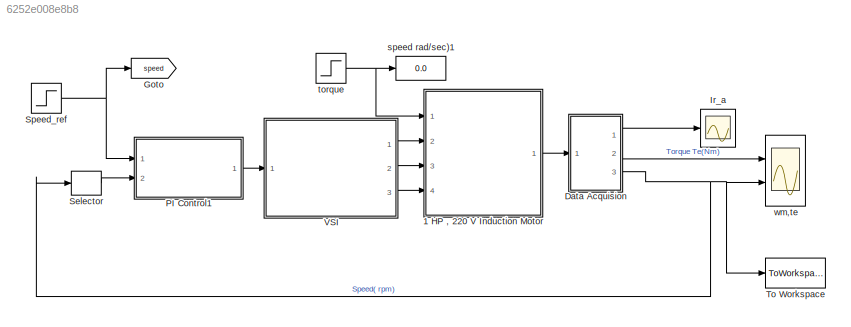
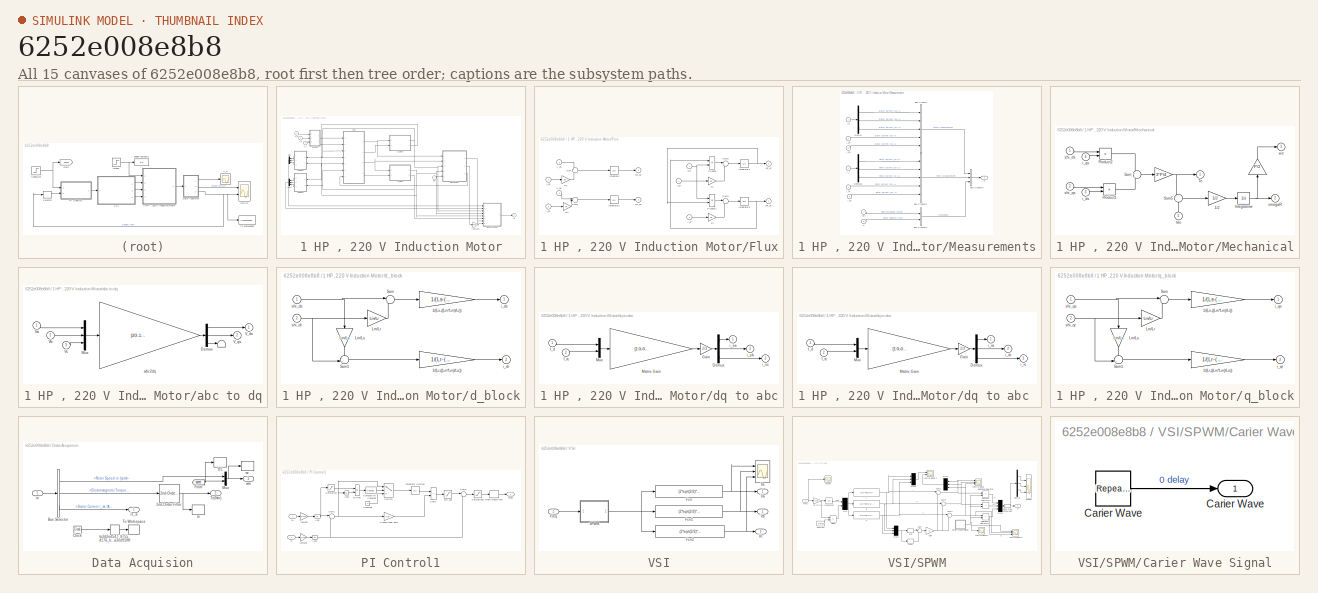
[diagram: thumbnail index - all 15 canvases of the model, root first then tree order]
MODEL mdl_6252e008e8b8
KIND model
CONFIG AbsTol = auto
CONFIG EnableMultiTasking = on
CONFIG FixedStep = auto
CONFIG InitFcn = ts=100e-6;
CONFIG MaxStep = auto
CONFIG MinStep = auto
CONFIG RelTol = 1e-3
CONFIG SampleTimeConstraint = Unconstrained
CONFIG SolverName = ode23tb
CONFIG StartFcn = close all
CONFIG StartTime = 0.0
CONFIG StopTime = 4
BLOCK [SubSystem] 1 HP , 220 V Induction Motor
  Ports = [4, 1]
  RequestExecContextInheritance = off
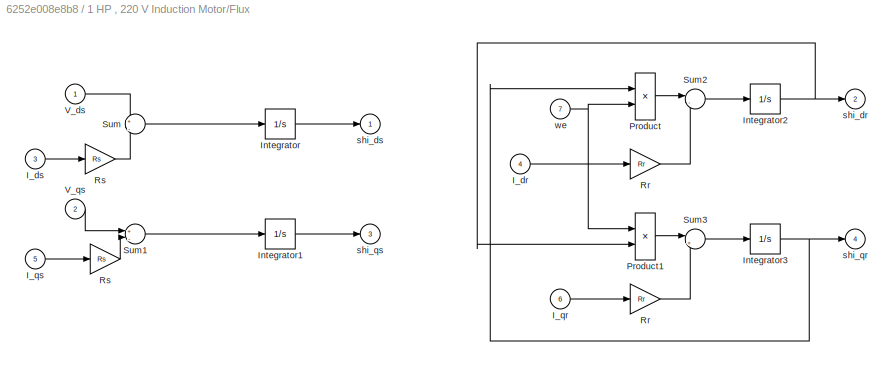
BLOCK [SubSystem] 1 HP , 220 V Induction Motor/Flux
  Ports = [7, 4]
  RequestExecContextInheritance = off
BLOCK [Inport] 1 HP , 220 V Induction Motor/Flux/I_dr
  Port = 4
BLOCK [Inport] 1 HP , 220 V Induction Motor/Flux/I_ds
  Port = 3
BLOCK [Inport] 1 HP , 220 V Induction Motor/Flux/I_qr
  Port = 6
BLOCK [Inport] 1 HP , 220 V Induction Motor/Flux/I_qs
  Port = 5
BLOCK [Integrator] 1 HP , 220 V Induction Motor/Flux/Integrator
  Ports = [1, 1]
BLOCK [Integrator] 1 HP , 220 V Induction Motor/Flux/Integrator1
  Ports = [1, 1]
BLOCK [Integrator] 1 HP , 220 V Induction Motor/Flux/Integrator2
  Ports = [1, 1]
BLOCK [Integrator] 1 HP , 220 V Induction Motor/Flux/Integrator3
  Ports = [1, 1]
BLOCK [Product] 1 HP , 220 V Induction Motor/Flux/Product
  Ports = [2, 1]
BLOCK [Product] 1 HP , 220 V Induction Motor/Flux/Product1
  Ports = [2, 1]
BLOCK [Gain] 1 HP , 220 V Induction Motor/Flux/Rr
  Gain = Rr
BLOCK [Gain] 1 HP , 220 V Induction Motor/Flux/Rr 
  Gain = Rr
BLOCK [Gain] 1 HP , 220 V Induction Motor/Flux/Rs
  Gain = Rs
BLOCK [Gain] 1 HP , 220 V Induction Motor/Flux/Rs 
  Gain = Rs
BLOCK [Sum] 1 HP , 220 V Induction Motor/Flux/Sum
  Inputs = +|-
  Ports = [2, 1]
BLOCK [Sum] 1 HP , 220 V Induction Motor/Flux/Sum1
  Inputs = +|-
  Ports = [2, 1]
BLOCK [Sum] 1 HP , 220 V Induction Motor/Flux/Sum2
  Inputs = |--
  Ports = [2, 1]
BLOCK [Sum] 1 HP , 220 V Induction Motor/Flux/Sum3
  Inputs = |+-
  Ports = [2, 1]
BLOCK [Inport] 1 HP , 220 V Induction Motor/Flux/V_ds
BLOCK [Inport] 1 HP , 220 V Induction Motor/Flux/V_qs
  Port = 2
BLOCK [Outport] 1 HP , 220 V Induction Motor/Flux/shi_dr 
  Port = 2
BLOCK [Outport] 1 HP , 220 V Induction Motor/Flux/shi_ds
BLOCK [Outport] 1 HP , 220 V Induction Motor/Flux/shi_qr 
  Port = 4
BLOCK [Outport] 1 HP , 220 V Induction Motor/Flux/shi_qs
  Port = 3
BLOCK [Inport] 1 HP , 220 V Induction Motor/Flux/we
  Port = 7
BLOCK [SubSystem] 1 HP , 220 V Induction Motor/Measurements
  Ports = [8, 1]
  RequestExecContextInheritance = off
BLOCK [BusCreator] 1 HP , 220 V Induction Motor/Measurements/Bus Creator
  DisplayOption = bar
  InheritFromInputs = on
  Inputs = 5
  Ports = [5, 1]
BLOCK [BusCreator] 1 HP , 220 V Induction Motor/Measurements/Bus Creator1
  DisplayOption = bar
  InheritFromInputs = on
  Inputs = 5
  Ports = [5, 1]
BLOCK [BusCreator] 1 HP , 220 V Induction Motor/Measurements/Bus Creator2
  DisplayOption = bar
  InheritFromInputs = on
  Inputs = 2
  Ports = [2, 1]
BLOCK [BusCreator] 1 HP , 220 V Induction Motor/Measurements/Bus Creator3
  DisplayOption = bar
  InheritFromInputs = on
  Inputs = 3
  Ports = [3, 1]
BLOCK [Demux] 1 HP , 220 V Induction Motor/Measurements/Demux
  Outputs = 3
  Ports = [1, 3]
BLOCK [Demux] 1 HP , 220 V Induction Motor/Measurements/Demux1
  Outputs = 3
  Ports = [1, 3]
BLOCK [Inport] 1 HP , 220 V Induction Motor/Measurements/I_dr
  Port = 4
BLOCK [Inport] 1 HP , 220 V Induction Motor/Measurements/I_ds
  Port = 3
BLOCK [Inport] 1 HP , 220 V Induction Motor/Measurements/I_qr
  Port = 6
BLOCK [Inport] 1 HP , 220 V Induction Motor/Measurements/I_qs
  Port = 5
BLOCK [Inport] 1 HP , 220 V Induction Motor/Measurements/I_r
  Port = 2
BLOCK [Inport] 1 HP , 220 V Induction Motor/Measurements/I_s
BLOCK [Inport] 1 HP , 220 V Induction Motor/Measurements/N
  Port = 8
BLOCK [Inport] 1 HP , 220 V Induction Motor/Measurements/Te
  Port = 7
BLOCK [Outport] 1 HP , 220 V Induction Motor/Measurements/m
BLOCK [SubSystem] 1 HP , 220 V Induction Motor/Mechanical
  Ports = [5, 3]
  RequestExecContextInheritance = off
BLOCK [Gain] 1 HP , 220 V Induction Motor/Mechanical/ 
  Gain = P/2
  NameLocation = left
  OutDataTypeStr = Inherit: Same as input
  ParamDataTypeStr = Inherit: Same as input
  SaturateOnIntegerOverflow = on
BLOCK [Gain] 1 HP , 220 V Induction Motor/Mechanical/  
  Gain = 3*P/4
  OutDataTypeStr = Inherit: Same as input
  ParamDataTypeStr = Inherit: Same as input
  SaturateOnIntegerOverflow = on
BLOCK [Gain] 1 HP , 220 V Induction Motor/Mechanical/1//J
  Gain = 1/J
  OutDataTypeStr = Inherit: Same as input
  ParamDataTypeStr = Inherit: Same as input
  SaturateOnIntegerOverflow = on
BLOCK [Integrator] 1 HP , 220 V Induction Motor/Mechanical/Integratorw
  Ports = [1, 1]
BLOCK [Product] 1 HP , 220 V Induction Motor/Mechanical/Product1
  Ports = [2, 1]
BLOCK [Product] 1 HP , 220 V Induction Motor/Mechanical/Product2
  Ports = [2, 1]
BLOCK [Sum] 1 HP , 220 V Induction Motor/Mechanical/Sum
  Inputs = +|-
  Ports = [2, 1]
BLOCK [Sum] 1 HP , 220 V Induction Motor/Mechanical/Sum5
  InputSameDT = on
  Inputs = +-
  OutDataTypeStr = Inherit: Same as first input
  Ports = [2, 1]
  SaturateOnIntegerOverflow = on
BLOCK [Outport] 1 HP , 220 V Induction Motor/Mechanical/Te
BLOCK [Inport] 1 HP , 220 V Induction Motor/Mechanical/i_ds
  Port = 3
BLOCK [Inport] 1 HP , 220 V Induction Motor/Mechanical/i_qs
  Port = 4
BLOCK [Outport] 1 HP , 220 V Induction Motor/Mechanical/omegaR
  Port = 2
BLOCK [Inport] 1 HP , 220 V Induction Motor/Mechanical/shi_ds
BLOCK [Inport] 1 HP , 220 V Induction Motor/Mechanical/shi_qs
  Port = 2
BLOCK [Inport] 1 HP , 220 V Induction Motor/Mechanical/tau
  NameLocation = left
  Port = 5
BLOCK [Outport] 1 HP , 220 V Induction Motor/Mechanical/we
  Port = 3
BLOCK [Mux] 1 HP , 220 V Induction Motor/Mux
  DisplayOption = bar
  Inputs = 3
  Ports = [3, 1]
BLOCK [Mux] 1 HP , 220 V Induction Motor/Mux1
  DisplayOption = bar
  Inputs = 3
  Ports = [3, 1]
BLOCK [Inport] 1 HP , 220 V Induction Motor/V_a
  NameLocation = top
  Port = 2
BLOCK [Inport] 1 HP , 220 V Induction Motor/V_b
  Port = 3
BLOCK [Inport] 1 HP , 220 V Induction Motor/V_c
  Port = 4
BLOCK [SubSystem] 1 HP , 220 V Induction Motor/abc to dq
  Ports = [3, 2]
  RequestExecContextInheritance = off
BLOCK [Terminator] 1 HP , 220 V Induction Motor/abc to dq/            
BLOCK [Demux] 1 HP , 220 V Induction Motor/abc to dq/Demux
  DisplayOption = none
  Outputs = 3
  Ports = [1, 3]
BLOCK [Mux] 1 HP , 220 V Induction Motor/abc to dq/Mux
  DisplayOption = bar
  Inputs = 3
  Ports = [3, 1]
BLOCK [Outport] 1 HP , 220 V Induction Motor/abc to dq/V_ds
BLOCK [Outport] 1 HP , 220 V Induction Motor/abc to dq/V_qs
  Port = 2
BLOCK [Inport] 1 HP , 220 V Induction Motor/abc to dq/Va
BLOCK [Inport] 1 HP , 220 V Induction Motor/abc to dq/Vb
  Port = 2
BLOCK [Inport] 1 HP , 220 V Induction Motor/abc to dq/Vc
  Port = 3
BLOCK [Gain] 1 HP , 220 V Induction Motor/abc to dq/abc2dq
  Gain = [2/3 -1/3 -1/3; 0 sqrt(3)/3 -sqrt(3)/3; 1/3 1/3 1/3]
  Multiplication = Matrix(K*u)
  OutDataTypeStr = Inherit: Same as input
  ParamDataTypeStr = Inherit: Same as input
  SaturateOnIntegerOverflow = on
BLOCK [SubSystem] 1 HP , 220 V Induction Motor/d_block
  Ports = [2, 2]
  RequestExecContextInheritance = off
BLOCK [Gain] 1 HP , 220 V Induction Motor/d_block/1//(Lr-((Lm*Lm)//Ls))
  Gain = 1/(Lr-((Lm*Lm)/Ls))
  OutDataTypeStr = Inherit: Same as input
  ParamDataTypeStr = Inherit: Same as input
  SaturateOnIntegerOverflow = on
BLOCK [Gain] 1 HP , 220 V Induction Motor/d_block/1//(Ls-((Lm*Lm)//Lr))
  Gain = 1/(Ls-((Lm*Lm)/Lr))
  OutDataTypeStr = Inherit: Same as input
  ParamDataTypeStr = Inherit: Same as input
  SaturateOnIntegerOverflow = on
BLOCK [Gain] 1 HP , 220 V Induction Motor/d_block/Lm//Lr
  Gain = Lm/Lr
BLOCK [Gain] 1 HP , 220 V Induction Motor/d_block/Lm//Ls
  Gain = Lm/Ls
  NameLocation = left
BLOCK [Sum] 1 HP , 220 V Induction Motor/d_block/Sum
  Inputs = |+-
  Ports = [2, 1]
BLOCK [Sum] 1 HP , 220 V Induction Motor/d_block/Sum1
  Inputs = -+|
  Ports = [2, 1]
BLOCK [Outport] 1 HP , 220 V Induction Motor/d_block/i_dr
  Port = 2
BLOCK [Outport] 1 HP , 220 V Induction Motor/d_block/i_ds
BLOCK [Inport] 1 HP , 220 V Induction Motor/d_block/shi_dr
  Port = 2
BLOCK [Inport] 1 HP , 220 V Induction Motor/d_block/shi_ds
BLOCK [SubSystem] 1 HP , 220 V Induction Motor/dq to abc
  Ports = [2, 3]
  RequestExecContextInheritance = off
BLOCK [SubSystem] 1 HP , 220 V Induction Motor/dq to abc 
  Ports = [2, 3]
  RequestExecContextInheritance = off
BLOCK [Demux] 1 HP , 220 V Induction Motor/dq to abc /Demux
  DisplayOption = none
  Outputs = 3
  Ports = [1, 3]
BLOCK [Gain] 1 HP , 220 V Induction Motor/dq to abc /Gain
  Gain = 2/3
  OutDataTypeStr = Inherit: Same as input
  ParamDataTypeStr = Inherit: Same as input
  SaturateOnIntegerOverflow = on
BLOCK [Inport] 1 HP , 220 V Induction Motor/dq to abc /I_d
BLOCK [Inport] 1 HP , 220 V Induction Motor/dq to abc /I_q
  Port = 2
BLOCK [Gain] 1 HP , 220 V Induction Motor/dq to abc /Matrix Gain
  Gain = [1 0;-0.5 -sqrt(3)/2;-0.5 sqrt(3)/2]
  Multiplication = Matrix(K*u)
  OutDataTypeStr = Inherit: Same as input
  ParamDataTypeStr = Inherit: Same as input
  SaturateOnIntegerOverflow = on
BLOCK [Mux] 1 HP , 220 V Induction Motor/dq to abc /Mux
  DisplayOption = bar
  Inputs = 2
  Ports = [2, 1]
BLOCK [Outport] 1 HP , 220 V Induction Motor/dq to abc /i_ra
BLOCK [Outport] 1 HP , 220 V Induction Motor/dq to abc /i_rb
  Port = 2
BLOCK [Outport] 1 HP , 220 V Induction Motor/dq to abc /i_rc
  Port = 3
BLOCK [Demux] 1 HP , 220 V Induction Motor/dq to abc/Demux
  DisplayOption = none
  Outputs = 3
  Ports = [1, 3]
BLOCK [Gain] 1 HP , 220 V Induction Motor/dq to abc/Gain
  Gain = 2/3
  OutDataTypeStr = Inherit: Same as input
  ParamDataTypeStr = Inherit: Same as input
  SaturateOnIntegerOverflow = on
BLOCK [Inport] 1 HP , 220 V Induction Motor/dq to abc/I_d
BLOCK [Inport] 1 HP , 220 V Induction Motor/dq to abc/I_q
  Port = 2
BLOCK [Gain] 1 HP , 220 V Induction Motor/dq to abc/Matrix Gain
  Gain = [1 0;-0.5 -sqrt(3)/2;-0.5 sqrt(3)/2]
  Multiplication = Matrix(K*u)
  OutDataTypeStr = Inherit: Same as input
  ParamDataTypeStr = Inherit: Same as input
  SaturateOnIntegerOverflow = on
BLOCK [Mux] 1 HP , 220 V Induction Motor/dq to abc/Mux
  DisplayOption = bar
  Inputs = 2
  Ports = [2, 1]
BLOCK [Outport] 1 HP , 220 V Induction Motor/dq to abc/i_sa
BLOCK [Outport] 1 HP , 220 V Induction Motor/dq to abc/i_sb
  Port = 2
BLOCK [Outport] 1 HP , 220 V Induction Motor/dq to abc/i_sc
  Port = 3
BLOCK [Outport] 1 HP , 220 V Induction Motor/m
BLOCK [SubSystem] 1 HP , 220 V Induction Motor/q_block
  Ports = [2, 2]
  RequestExecContextInheritance = off
BLOCK [Gain] 1 HP , 220 V Induction Motor/q_block/1//(Lr-((Lm*Lm)//Ls))
  Gain = 1/(Lr-((Lm*Lm)/Ls))
  OutDataTypeStr = Inherit: Same as input
  ParamDataTypeStr = Inherit: Same as input
  SaturateOnIntegerOverflow = on
BLOCK [Gain] 1 HP , 220 V Induction Motor/q_block/1//(Ls-((Lm*Lm)//Lr))
  Gain = 1/(Ls-((Lm*Lm)/Lr))
  OutDataTypeStr = Inherit: Same as input
  ParamDataTypeStr = Inherit: Same as input
  SaturateOnIntegerOverflow = on
BLOCK [Gain] 1 HP , 220 V Induction Motor/q_block/Lm//Lr
  Gain = Lm/Lr
BLOCK [Gain] 1 HP , 220 V Induction Motor/q_block/Lm//Ls
  Gain = Lm/Ls
  NameLocation = right
BLOCK [Sum] 1 HP , 220 V Induction Motor/q_block/Sum
  Inputs = |+-
  Ports = [2, 1]
BLOCK [Sum] 1 HP , 220 V Induction Motor/q_block/Sum1
  Inputs = -+|
  Ports = [2, 1]
BLOCK [Outport] 1 HP , 220 V Induction Motor/q_block/i_qr
  Port = 2
BLOCK [Outport] 1 HP , 220 V Induction Motor/q_block/i_qs
BLOCK [Inport] 1 HP , 220 V Induction Motor/q_block/shi_qr
  Port = 2
BLOCK [Inport] 1 HP , 220 V Induction Motor/q_block/shi_qs
BLOCK [Gain] 1 HP , 220 V Induction Motor/rad2rpm
  Gain = 30/pi
BLOCK [Inport] 1 HP , 220 V Induction Motor/tau
BLOCK [SubSystem] Data Acquision
  Ports = [1, 3]
  RequestExecContextInheritance = off
BLOCK [Reference] Data Acquision/2nd-Order Filter  REF=powerlib_extras/Control 
Blocks/2nd-Order
Filter
  Ports = [1, 1]
  SourceBlock = powerlib_extras/Control \nBlocks/2nd-Order\nFilter
  SourceProductBaseCode = PS
  SourceType = 2nd-Order Filter
BLOCK [BusSelector] Data Acquision/Bus Selector
  OutputSignals = Mechanical.Rotor Speed in (rpm),Mechanical.Electromagnetic Torque (N*m),Stator Measurement.Stator Current i_sa (A)
  Ports = [1, 3]
BLOCK [Clock] Data Acquision/Clock
BLOCK [From] Data Acquision/From
  GotoTag = speed
  TagVisibility = global
BLOCK [Mux] Data Acquision/Mux
  DisplayOption = bar
  Inputs = 2
  Ports = [2, 1]
BLOCK [Outport] Data Acquision/Te(Nm)
  Port = 2
BLOCK [ToWorkspace] Data Acquision/To Workspace
  FixptAsFi = on
  MaxDataPoints = inf
  Ports = [1]
  SampleTime = ts
  VariableName = t
BLOCK [Outport] Data Acquision/is_a
BLOCK [Inport] Data Acquision/m
BLOCK [ToWorkspace] Data Acquision/te
  MaxDataPoints = inf
  Ports = [1]
  SampleTime = ts
  VariableName = Te_pi
BLOCK [ToWorkspace] Data Acquision/te1
  MaxDataPoints = inf
  Ports = [1]
  SampleTime = ts
  VariableName = ref_pi
BLOCK [FrameConversion] Data Acquision/tp2d2ed547_8755_4176_b2df_b47a3ed91f8f
  OutFrame = Sample-based
  Ports = [1, 1]
BLOCK [Outport] Data Acquision/wm
  Port = 3
BLOCK [ToWorkspace] Data Acquision/wr
  MaxDataPoints = inf
  Ports = [1]
  SampleTime = ts
  VariableName = N_pi
BLOCK [Goto] Goto
  GotoTag = speed
  TagVisibility = global
BLOCK [Scope] Ir_a
  Floating = off
  NumInputPorts = 1
  Ports = [1]
  ScopeSpecificationString = C++SS(StrPVP('Location','[154, 63, 762, 358]'),StrPVP('Open','off'),StrPVP('ZoomMode','xonly'),MxPVP('AxesTitles',54,'struct(''axes1'',''%<SignalLabel>'')'),StrPVP('ShowLegends','off'),StrPVP('TimeRange','2'),StrPVP('YMin','-3'),StrPVP('YMax','3'),StrPVP('DataFormat','StructureWithTime'),StrPVP('LimitDataPoints','off'),StrPVP('BlockParamSampleTime','ts'),StrPVP('Decimation','1'),StrPVP('BlockParam...<+20ch>
BLOCK [SubSystem] PI Control1
  Ports = [2, 1]
  RequestExecContextInheritance = off
BLOCK [Abs] PI Control1/Abs
BLOCK [Abs] PI Control1/Abs1
BLOCK [Abs] PI Control1/Abs2
  SaturateOnIntegerOverflow = off
BLOCK [Reference] PI Control1/Compare To Constant  REF=simulink/Logic and Bit
Operations/Compare
To Constant
  Ports = [1, 1]
  SourceBlock = simulink/Logic and Bit\nOperations/Compare\nTo Constant
  SourceProductBaseCode = SL
  SourceType = Compare To Constant
BLOCK [Constant] PI Control1/Constant
  Value = 0
BLOCK [Product] PI Control1/Divide
  Inputs = /*
  Ports = [2, 1]
BLOCK [Outport] PI Control1/Freq*
BLOCK [Integrator] PI Control1/Integrator Limited
  LimitOutput = on
  LowerSaturationLimit = -30
  Ports = [1, 1]
  UpperSaturationLimit = 30
BLOCK [Inport] PI Control1/N
  Port = 2
BLOCK [Inport] PI Control1/N*
BLOCK [Gain] PI Control1/Proportional gain
  Gain = 0.6
  OutDataTypeStr = Inherit: Same as input
  ParamDataTypeStr = Inherit: Same as input
  SaturateOnIntegerOverflow = on
BLOCK [RateTransition] PI Control1/Rate Transition3
  OutPortSampleTimeOpt = Inherit
BLOCK [Saturate] PI Control1/Saturation
  LowerLimit = 2
  UpperLimit = inf
BLOCK [Saturate] PI Control1/Saturation2
  LowerLimit = 0.02
  UpperLimit = 120
BLOCK [Sum] PI Control1/Sum1
  InputSameDT = on
  Inputs = |+-
  OutDataTypeStr = Inherit: Same as first input
  Ports = [2, 1]
  SaturateOnIntegerOverflow = on
BLOCK [Sum] PI Control1/Sum2
  IconShape = rectangular
  InputSameDT = on
  OutDataTypeStr = Inherit: Same as first input
  Ports = [2, 1]
  SaturateOnIntegerOverflow = on
BLOCK [Sum] PI Control1/Sum3
  InputSameDT = on
  Inputs = |++
  OutDataTypeStr = Inherit: Same as first input
  Ports = [2, 1]
  SaturateOnIntegerOverflow = on
BLOCK [Switch] PI Control1/Switch
  InputSameDT = off
  SaturateOnIntegerOverflow = off
  Threshold = 0.5
BLOCK [Saturate] PI Control1/ctrl_sat
  LowerLimit = -30
  UpperLimit = 30
BLOCK [Gain] PI Control1/rpm2hz
  Gain = 4/120
  OutDataTypeStr = Inherit: Same as input
  ParamDataTypeStr = Inherit: Same as input
  SaturateOnIntegerOverflow = on
BLOCK [Gain] PI Control1/rpm2hz  
  Gain = 4/120
  OutDataTypeStr = Inherit: Same as input
  ParamDataTypeStr = Inherit: Same as input
  SaturateOnIntegerOverflow = on
BLOCK [Selector] Selector
  IndexOptions = Index vector (dialog)
  Indices = [1]
  InputPortWidth = 2
  OutputSizes = 1
  Ports = [1, 1]
BLOCK [Step] Speed_ref
  After = 1400
  Before = 500
  SampleTime = 0
  Time = 2
BLOCK [ToWorkspace] To Workspace
  MaxDataPoints = inf
  Ports = [1]
  SampleTime = -1
  SaveFormat = Timeseries
  VariableName = Speed_PI
BLOCK [SubSystem] VSI
  Ports = [1, 3]
  RequestExecContextInheritance = off
BLOCK [Fcn] VSI/Fcn
  Expr = (2*sqrt(2/3)*Vdc/3)*(2*u(1)-u(2)-u(3))
BLOCK [Fcn] VSI/Fcn1
  Expr = (2*sqrt(2/3)*Vdc/3)*(2*u(2)-u(3)-u(1))
BLOCK [Fcn] VSI/Fcn2
  Expr = (2*sqrt(2/3)*Vdc/3)*(2*u(3)-u(2)-u(1))
BLOCK [Inport] VSI/Freq
  NameLocation = top
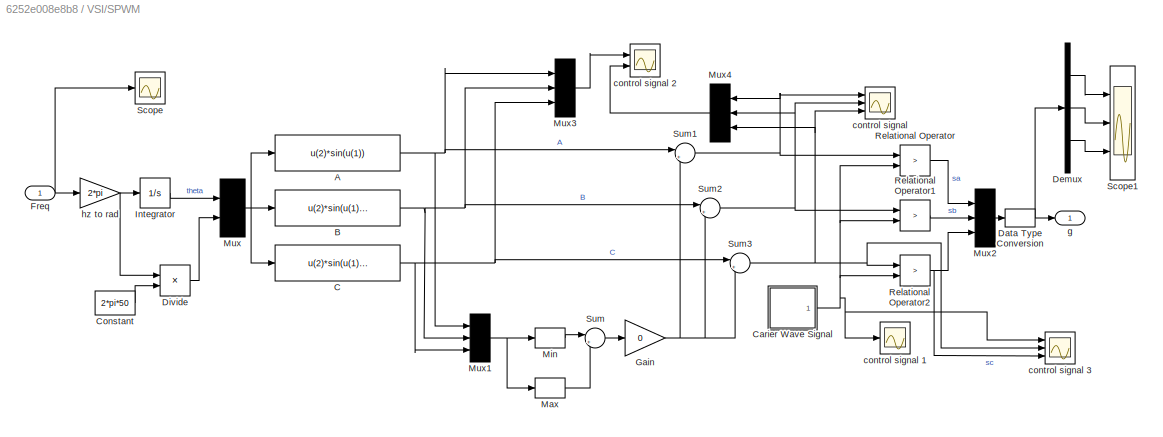
BLOCK [SubSystem] VSI/SPWM
  Ports = [1, 1]
  RequestExecContextInheritance = off
BLOCK [Fcn] VSI/SPWM/A
  Expr = u(2)*sin(u(1))
BLOCK [Fcn] VSI/SPWM/B
  Expr = u(2)*sin(u(1)-2*pi/3)
BLOCK [Fcn] VSI/SPWM/C
  Expr = u(2)*sin(u(1)+2*pi/3)
BLOCK [SubSystem] VSI/SPWM/Carier Wave Signal
  Ports = [0, 1]
  RequestExecContextInheritance = off
BLOCK [Reference] VSI/SPWM/Carier Wave Signal/Carier Wave  REF=simulink/Sources/Repeating
Sequence
  Ports = [0, 1]
  SourceBlock = simulink/Sources/Repeating\nSequence
  SourceProductBaseCode = SL
  SourceType = Repeating table
BLOCK [Outport] VSI/SPWM/Carier Wave Signal/Carier Wave 
BLOCK [Constant] VSI/SPWM/Constant
  Value = 2*pi*50
BLOCK [DataTypeConversion] VSI/SPWM/Data Type Conversion
  RndMeth = Floor
  SaturateOnIntegerOverflow = off
BLOCK [Demux] VSI/SPWM/Demux
  Outputs = 3
  Ports = [1, 3]
BLOCK [Product] VSI/SPWM/Divide
  Inputs = */
  Ports = [2, 1]
BLOCK [Inport] VSI/SPWM/Freq
BLOCK [Gain] VSI/SPWM/Gain
  Gain = 0
BLOCK [Integrator] VSI/SPWM/Integrator
  Ports = [1, 1]
BLOCK [MinMax] VSI/SPWM/Max
  Function = max
  Ports = [1, 1]
BLOCK [MinMax] VSI/SPWM/Min
  Ports = [1, 1]
BLOCK [Mux] VSI/SPWM/Mux
  DisplayOption = signals
  Inputs = 2
  Ports = [2, 1]
BLOCK [Mux] VSI/SPWM/Mux1
  DisplayOption = signals
  Inputs = 3
  Ports = [3, 1]
BLOCK [Mux] VSI/SPWM/Mux2
  DisplayOption = signals
  Inputs = 3
  Ports = [3, 1]
BLOCK [Mux] VSI/SPWM/Mux3
  DisplayOption = signals
  Inputs = 3
  Ports = [3, 1]
BLOCK [Mux] VSI/SPWM/Mux4
  DisplayOption = signals
  Inputs = 3
  Ports = [3, 1]
BLOCK [RelationalOperator] VSI/SPWM/Relational Operator
  InputSameDT = off
  Operator = >
  OutDataTypeStr = boolean
  Ports = [2, 1]
BLOCK [RelationalOperator] VSI/SPWM/Relational Operator1
  InputSameDT = off
  Operator = >
  OutDataTypeStr = boolean
  Ports = [2, 1]
BLOCK [RelationalOperator] VSI/SPWM/Relational Operator2
  InputSameDT = off
  Operator = >
  OutDataTypeStr = boolean
  Ports = [2, 1]
BLOCK [Scope] VSI/SPWM/Scope
  Floating = off
  NumInputPorts = 1
  Ports = [1]
  ScopeSpecificationString = C++SS(StrPVP('Location','[5, 49, 1371, 737]'),StrPVP('Open','off'),StrPVP('ZoomMode','yonly'),MxPVP('AxesTitles',54,'struct(''axes1'',''%<SignalLabel>'')'),StrPVP('ShowLegends','off'),StrPVP('TimeRange','3'),StrPVP('YMin','30'),StrPVP('YMax','50'),StrPVP('SaveName','ScopeData2'),StrPVP('DataFormat','StructureWithTime'),StrPVP('LimitDataPoints','off'),StrPVP('BlockParamSampleTime','0'),StrPVP('Deci...<+51ch>
BLOCK [Scope] VSI/SPWM/Scope1
  Floating = off
  NumInputPorts = 3
  Ports = [3]
  ScopeSpecificationString = C++SS(StrPVP('Location','[5, 49, 1371, 737]'),StrPVP('Open','off'),StrPVP('ZoomMode','xonly'),MxPVP('AxesTitles',54,'struct(''axes1'',''%<SignalLabel>'',''axes2'',''%<SignalLabel>'',''axes3'',''%<SignalLabel>'')'),MxPVP('ScopeGraphics',57,'struct(''FigureColor'',''[0.5 0.5 0.5]'',''AxesColor'',''[0 0 0]'',''AxesTickColor'',''[1 1 1]'',''LineColors'',''[1 1 0;1 0 1;0 1 1;1 0 0;0 1 0;0 0 1]'',''Line...<+429ch>
BLOCK [Sum] VSI/SPWM/Sum
  Inputs = |++
  Ports = [2, 1]
BLOCK [Sum] VSI/SPWM/Sum1
  Inputs = |++
  Ports = [2, 1]
BLOCK [Sum] VSI/SPWM/Sum2
  Inputs = |++
  Ports = [2, 1]
BLOCK [Sum] VSI/SPWM/Sum3
  Inputs = |++
  Ports = [2, 1]
BLOCK [Scope] VSI/SPWM/control signal 
  Floating = off
  NumInputPorts = 3
  Ports = [3]
  ScopeSpecificationString = C++SS(StrPVP('Location','[5, 49, 1371, 737]'),StrPVP('Open','off'),MxPVP('AxesTitles',54,'struct(''axes1'',''%<SignalLabel>'',''axes2'',''%<SignalLabel>'',''axes3'',''%<SignalLabel>'')'),StrPVP('ShowLegends','off'),StrPVP('TimeRange','0.5'),StrPVP('YMin','-1.5~-1.5~-1.5'),StrPVP('YMax','1.5~1.5~1.5'),StrPVP('DataFormat','StructureWithTime'),StrPVP('LimitDataPoints','off'),StrPVP('BlockParamSampleT...<+73ch>
BLOCK [Scope] VSI/SPWM/control signal 1
  Floating = off
  NumInputPorts = 1
  Ports = [1]
  ScopeSpecificationString = C++SS(StrPVP('Location','[5, 49, 1371, 737]'),StrPVP('Open','off'),StrPVP('ZoomMode','xonly'),MxPVP('AxesTitles',54,'struct(''axes1'',''%<SignalLabel>'')'),StrPVP('ShowLegends','off'),StrPVP('TimeRange','0.0117840461100045'),StrPVP('YMin','-1'),StrPVP('YMax','1'),StrPVP('SaveName','ScopeData1'),StrPVP('DataFormat','StructureWithTime'),StrPVP('LimitDataPoints','off'),StrPVP('BlockParamSampleTime','...<+68ch>
BLOCK [Scope] VSI/SPWM/control signal 2
  Floating = off
  NumInputPorts = 2
  Ports = [2]
  ScopeSpecificationString = C++SS(StrPVP('Location','[5, 49, 1371, 737]'),StrPVP('Open','off'),StrPVP('ZoomMode','xonly'),MxPVP('AxesTitles',54,'struct(''axes1'',''%<SignalLabel>'',''axes2'',''%<SignalLabel>'')'),StrPVP('ShowLegends','off'),StrPVP('TimeRange','4'),StrPVP('YMin','-1.5~-1.5'),StrPVP('YMax','1.5~1.5'),StrPVP('SaveName','ScopeData6'),StrPVP('DataFormat','StructureWithTime'),StrPVP('LimitDataPoints','off'),StrPVP...<+92ch>
BLOCK [Scope] VSI/SPWM/control signal 3
  Floating = off
  NumInputPorts = 3
  Ports = [3]
  ScopeSpecificationString = C++SS(StrPVP('Location','[5, 49, 1371, 737]'),StrPVP('Open','off'),StrPVP('ZoomMode','xonly'),MxPVP('AxesTitles',54,'struct(''axes1'',''%<SignalLabel>'',''axes2'',''%<SignalLabel>'',''axes3'',''%<SignalLabel>'')'),MxPVP('ScopeGraphics',57,'struct(''FigureColor'',''[0.5 0.5 0.5]'',''AxesColor'',''[0 0 0]'',''AxesTickColor'',''[1 1 1]'',''LineColors'',''[1 1 0;1 0 1;0 1 1;1 0 0;0 1 0;0 0 1]'',''Line...<+446ch>
BLOCK [Outport] VSI/SPWM/g
BLOCK [Gain] VSI/SPWM/hz to rad
  Gain = 2*pi
BLOCK [Outport] VSI/Va
BLOCK [Outport] VSI/Vb
  Port = 2
BLOCK [Outport] VSI/Vc
  Port = 3
BLOCK [Scope] VSI/Vs
  Floating = off
  NameLocation = top
  NumInputPorts = 3
  Ports = [3]
  ScopeSpecificationString = C++SS(StrPVP('Location','[5, 49, 1371, 737]'),StrPVP('Open','off'),StrPVP('ZoomMode','xonly'),MxPVP('AxesTitles',54,'struct(''axes1'',''%<SignalLabel>'',''axes2'',''%<SignalLabel>'',''axes3'',''%<SignalLabel>'')'),StrPVP('ShowLegends','off'),StrPVP('TimeRange','0.1701392689898436'),StrPVP('YMin','-500~-500~-500'),StrPVP('YMax','500~500~500'),StrPVP('SaveToWorkspace','on'),StrPVP('SaveName','voltag...<+175ch>
BLOCK [Display] speed rad//sec)1
  Decimation = 1
  NameLocation = top
  Ports = [1]
BLOCK [Step] torque
  SampleTime = 0
  Time = 2
BLOCK [Scope] wm,te
  Floating = off
  NumInputPorts = 2
  Ports = [2]
  ScopeSpecificationString = C++SS(StrPVP('Location','[774, 60, 1361, 710]'),StrPVP('Open','off'),MxPVP('AxesTitles',54,'struct(''axes1'',''%<SignalLabel>'',''axes2'',''%<SignalLabel>'')'),MxPVP('ScopeGraphics',57,'struct(''FigureColor'',''[0.5 0.5 0.5]'',''AxesColor'',''[0 0 0]'',''AxesTickColor'',''[1 1 1]'',''LineColors'',''[1 1 0;1 0 1;0 1 1;1 0 0;0 1 0;0 0 1]'',''LineStyles'',''-|-|-|-|-|-'',''LineWidths'',''[0.5 0.5 0.5...<+376ch>
LINE 1 HP , 220 V Induction Motor/Flux/I_dr:1 -> 1 HP , 220 V Induction Motor/Flux/Rr:1
LINE 1 HP , 220 V Induction Motor/Flux/I_ds:1 -> 1 HP , 220 V Induction Motor/Flux/Rs:1
LINE 1 HP , 220 V Induction Motor/Flux/I_qr:1 -> 1 HP , 220 V Induction Motor/Flux/Rr :1
LINE 1 HP , 220 V Induction Motor/Flux/I_qs:1 -> 1 HP , 220 V Induction Motor/Flux/Rs :1
LINE 1 HP , 220 V Induction Motor/Flux/Integrator1:1 -> 1 HP , 220 V Induction Motor/Flux/shi_qs:1
NET 1 HP , 220 V Induction Motor/Flux/Integrator2:1 -> 1 HP , 220 V Induction Motor/Flux/Product1:2, 1 HP , 220 V Induction Motor/Flux/shi_dr :1
NET 1 HP , 220 V Induction Motor/Flux/Integrator3:1 -> 1 HP , 220 V Induction Motor/Flux/Product:1, 1 HP , 220 V Induction Motor/Flux/shi_qr :1
LINE 1 HP , 220 V Induction Motor/Flux/Integrator:1 -> 1 HP , 220 V Induction Motor/Flux/shi_ds:1
LINE 1 HP , 220 V Induction Motor/Flux/Product1:1 -> 1 HP , 220 V Induction Motor/Flux/Sum3:1
LINE 1 HP , 220 V Induction Motor/Flux/Product:1 -> 1 HP , 220 V Induction Motor/Flux/Sum2:1
LINE 1 HP , 220 V Induction Motor/Flux/Rr :1 -> 1 HP , 220 V Induction Motor/Flux/Sum3:2
LINE 1 HP , 220 V Induction Motor/Flux/Rr:1 -> 1 HP , 220 V Induction Motor/Flux/Sum2:2
LINE 1 HP , 220 V Induction Motor/Flux/Rs :1 -> 1 HP , 220 V Induction Motor/Flux/Sum1:2
LINE 1 HP , 220 V Induction Motor/Flux/Rs:1 -> 1 HP , 220 V Induction Motor/Flux/Sum:2
LINE 1 HP , 220 V Induction Motor/Flux/Sum1:1 -> 1 HP , 220 V Induction Motor/Flux/Integrator1:1
LINE 1 HP , 220 V Induction Motor/Flux/Sum2:1 -> 1 HP , 220 V Induction Motor/Flux/Integrator2:1
LINE 1 HP , 220 V Induction Motor/Flux/Sum3:1 -> 1 HP , 220 V Induction Motor/Flux/Integrator3:1
LINE 1 HP , 220 V Induction Motor/Flux/Sum:1 -> 1 HP , 220 V Induction Motor/Flux/Integrator:1
LINE 1 HP , 220 V Induction Motor/Flux/V_ds:1 -> 1 HP , 220 V Induction Motor/Flux/Sum:1
LINE 1 HP , 220 V Induction Motor/Flux/V_qs:1 -> 1 HP , 220 V Induction Motor/Flux/Sum1:1
NET 1 HP , 220 V Induction Motor/Flux/we:1 -> 1 HP , 220 V Induction Motor/Flux/Product1:1, 1 HP , 220 V Induction Motor/Flux/Product:2
NET 1 HP , 220 V Induction Motor/Flux:1 -> 1 HP , 220 V Induction Motor/Mechanical:1, 1 HP , 220 V Induction Motor/d_block:1
LINE 1 HP , 220 V Induction Motor/Flux:2 -> 1 HP , 220 V Induction Motor/d_block:2
NET 1 HP , 220 V Induction Motor/Flux:3 -> 1 HP , 220 V Induction Motor/Mechanical:2, 1 HP , 220 V Induction Motor/q_block:1
LINE 1 HP , 220 V Induction Motor/Flux:4 -> 1 HP , 220 V Induction Motor/q_block:2
LINE 1 HP , 220 V Induction Motor/Measurements/Bus Creator1:1 -> 1 HP , 220 V Induction Motor/Measurements/Bus Creator3:2
LINE 1 HP , 220 V Induction Motor/Measurements/Bus Creator2:1 -> 1 HP , 220 V Induction Motor/Measurements/Bus Creator3:3
LINE 1 HP , 220 V Induction Motor/Measurements/Bus Creator3:1 -> 1 HP , 220 V Induction Motor/Measurements/m:1
LINE 1 HP , 220 V Induction Motor/Measurements/Bus Creator:1 -> 1 HP , 220 V Induction Motor/Measurements/Bus Creator3:1
LINE 1 HP , 220 V Induction Motor/Measurements/Demux1:1 -> 1 HP , 220 V Induction Motor/Measurements/Bus Creator1:1
LINE 1 HP , 220 V Induction Motor/Measurements/Demux1:2 -> 1 HP , 220 V Induction Motor/Measurements/Bus Creator1:2
LINE 1 HP , 220 V Induction Motor/Measurements/Demux1:3 -> 1 HP , 220 V Induction Motor/Measurements/Bus Creator1:3
LINE 1 HP , 220 V Induction Motor/Measurements/Demux:1 -> 1 HP , 220 V Induction Motor/Measurements/Bus Creator:1
LINE 1 HP , 220 V Induction Motor/Measurements/Demux:2 -> 1 HP , 220 V Induction Motor/Measurements/Bus Creator:2
LINE 1 HP , 220 V Induction Motor/Measurements/Demux:3 -> 1 HP , 220 V Induction Motor/Measurements/Bus Creator:3
LINE 1 HP , 220 V Induction Motor/Measurements/I_dr:1 -> 1 HP , 220 V Induction Motor/Measurements/Bus Creator1:4
LINE 1 HP , 220 V Induction Motor/Measurements/I_ds:1 -> 1 HP , 220 V Induction Motor/Measurements/Bus Creator:4
LINE 1 HP , 220 V Induction Motor/Measurements/I_qr:1 -> 1 HP , 220 V Induction Motor/Measurements/Bus Creator1:5
LINE 1 HP , 220 V Induction Motor/Measurements/I_qs:1 -> 1 HP , 220 V Induction Motor/Measurements/Bus Creator:5
LINE 1 HP , 220 V Induction Motor/Measurements/I_r:1 -> 1 HP , 220 V Induction Motor/Measurements/Demux1:1
LINE 1 HP , 220 V Induction Motor/Measurements/I_s:1 -> 1 HP , 220 V Induction Motor/Measurements/Demux:1
LINE 1 HP , 220 V Induction Motor/Measurements/N:1 -> 1 HP , 220 V Induction Motor/Measurements/Bus Creator2:2
LINE 1 HP , 220 V Induction Motor/Measurements/Te:1 -> 1 HP , 220 V Induction Motor/Measurements/Bus Creator2:1
LINE 1 HP , 220 V Induction Motor/Measurements:1 -> 1 HP , 220 V Induction Motor/m:1
NET 1 HP , 220 V Induction Motor/Mechanical/  :1 -> 1 HP , 220 V Induction Motor/Mechanical/Sum5:1, 1 HP , 220 V Induction Motor/Mechanical/Te:1
LINE 1 HP , 220 V Induction Motor/Mechanical/ :1 -> 1 HP , 220 V Induction Motor/Mechanical/we:1
LINE 1 HP , 220 V Induction Motor/Mechanical/1//J:1 -> 1 HP , 220 V Induction Motor/Mechanical/Integratorw:1
NET 1 HP , 220 V Induction Motor/Mechanical/Integratorw:1 -> 1 HP , 220 V Induction Motor/Mechanical/ :1, 1 HP , 220 V Induction Motor/Mechanical/omegaR:1
LINE 1 HP , 220 V Induction Motor/Mechanical/Product1:1 -> 1 HP , 220 V Induction Motor/Mechanical/Sum:2
LINE 1 HP , 220 V Induction Motor/Mechanical/Product2:1 -> 1 HP , 220 V Induction Motor/Mechanical/Sum:1
LINE 1 HP , 220 V Induction Motor/Mechanical/Sum5:1 -> 1 HP , 220 V Induction Motor/Mechanical/1//J:1
LINE 1 HP , 220 V Induction Motor/Mechanical/Sum:1 -> 1 HP , 220 V Induction Motor/Mechanical/  :1
LINE 1 HP , 220 V Induction Motor/Mechanical/i_ds:1 -> 1 HP , 220 V Induction Motor/Mechanical/Product1:2
LINE 1 HP , 220 V Induction Motor/Mechanical/i_qs:1 -> 1 HP , 220 V Induction Motor/Mechanical/Product2:2
LINE 1 HP , 220 V Induction Motor/Mechanical/shi_ds:1 -> 1 HP , 220 V Induction Motor/Mechanical/Product2:1
LINE 1 HP , 220 V Induction Motor/Mechanical/shi_qs:1 -> 1 HP , 220 V Induction Motor/Mechanical/Product1:1
LINE 1 HP , 220 V Induction Motor/Mechanical/tau:1 -> 1 HP , 220 V Induction Motor/Mechanical/Sum5:2
LINE 1 HP , 220 V Induction Motor/Mechanical:1 -> 1 HP , 220 V Induction Motor/Measurements:7
LINE 1 HP , 220 V Induction Motor/Mechanical:2 -> 1 HP , 220 V Induction Motor/rad2rpm:1
LINE 1 HP , 220 V Induction Motor/Mechanical:3 -> 1 HP , 220 V Induction Motor/Flux:7
LINE 1 HP , 220 V Induction Motor/Mux1:1 -> 1 HP , 220 V Induction Motor/Measurements:2
LINE 1 HP , 220 V Induction Motor/Mux:1 -> 1 HP , 220 V Induction Motor/Measurements:1
LINE 1 HP , 220 V Induction Motor/V_a:1 -> 1 HP , 220 V Induction Motor/abc to dq:1
LINE 1 HP , 220 V Induction Motor/V_b:1 -> 1 HP , 220 V Induction Motor/abc to dq:2
LINE 1 HP , 220 V Induction Motor/V_c:1 -> 1 HP , 220 V Induction Motor/abc to dq:3
LINE 1 HP , 220 V Induction Motor/abc to dq/Demux:1 -> 1 HP , 220 V Induction Motor/abc to dq/V_ds:1
LINE 1 HP , 220 V Induction Motor/abc to dq/Demux:2 -> 1 HP , 220 V Induction Motor/abc to dq/V_qs:1
LINE 1 HP , 220 V Induction Motor/abc to dq/Demux:3 -> 1 HP , 220 V Induction Motor/abc to dq/            :1
LINE 1 HP , 220 V Induction Motor/abc to dq/Mux:1 -> 1 HP , 220 V Induction Motor/abc to dq/abc2dq:1
LINE 1 HP , 220 V Induction Motor/abc to dq/Va:1 -> 1 HP , 220 V Induction Motor/abc to dq/Mux:1
LINE 1 HP , 220 V Induction Motor/abc to dq/Vb:1 -> 1 HP , 220 V Induction Motor/abc to dq/Mux:2
LINE 1 HP , 220 V Induction Motor/abc to dq/Vc:1 -> 1 HP , 220 V Induction Motor/abc to dq/Mux:3
LINE 1 HP , 220 V Induction Motor/abc to dq/abc2dq:1 -> 1 HP , 220 V Induction Motor/abc to dq/Demux:1
LINE 1 HP , 220 V Induction Motor/abc to dq:1 -> 1 HP , 220 V Induction Motor/Flux:1
LINE 1 HP , 220 V Induction Motor/abc to dq:2 -> 1 HP , 220 V Induction Motor/Flux:2
LINE 1 HP , 220 V Induction Motor/d_block/1//(Lr-((Lm*Lm)//Ls)):1 -> 1 HP , 220 V Induction Motor/d_block/i_dr:1
LINE 1 HP , 220 V Induction Motor/d_block/1//(Ls-((Lm*Lm)//Lr)):1 -> 1 HP , 220 V Induction Motor/d_block/i_ds:1
LINE 1 HP , 220 V Induction Motor/d_block/Lm//Lr:1 -> 1 HP , 220 V Induction Motor/d_block/Sum:2
LINE 1 HP , 220 V Induction Motor/d_block/Lm//Ls:1 -> 1 HP , 220 V Induction Motor/d_block/Sum1:1
LINE 1 HP , 220 V Induction Motor/d_block/Sum1:1 -> 1 HP , 220 V Induction Motor/d_block/1//(Lr-((Lm*Lm)//Ls)):1
LINE 1 HP , 220 V Induction Motor/d_block/Sum:1 -> 1 HP , 220 V Induction Motor/d_block/1//(Ls-((Lm*Lm)//Lr)):1
NET 1 HP , 220 V Induction Motor/d_block/shi_dr:1 -> 1 HP , 220 V Induction Motor/d_block/Lm//Lr:1, 1 HP , 220 V Induction Motor/d_block/Sum1:2
NET 1 HP , 220 V Induction Motor/d_block/shi_ds:1 -> 1 HP , 220 V Induction Motor/d_block/Lm//Ls:1, 1 HP , 220 V Induction Motor/d_block/Sum:1
NET 1 HP , 220 V Induction Motor/d_block:1 -> 1 HP , 220 V Induction Motor/Flux:3, 1 HP , 220 V Induction Motor/Measurements:3, 1 HP , 220 V Induction Motor/Mechanical:3, 1 HP , 220 V Induction Motor/dq to abc:1
NET 1 HP , 220 V Induction Motor/d_block:2 -> 1 HP , 220 V Induction Motor/Flux:4, 1 HP , 220 V Induction Motor/dq to abc :1
LINE 1 HP , 220 V Induction Motor/dq to abc /Demux:1 -> 1 HP , 220 V Induction Motor/dq to abc /i_ra:1
LINE 1 HP , 220 V Induction Motor/dq to abc /Demux:2 -> 1 HP , 220 V Induction Motor/dq to abc /i_rb:1
LINE 1 HP , 220 V Induction Motor/dq to abc /Demux:3 -> 1 HP , 220 V Induction Motor/dq to abc /i_rc:1
LINE 1 HP , 220 V Induction Motor/dq to abc /Gain:1 -> 1 HP , 220 V Induction Motor/dq to abc /Demux:1
LINE 1 HP , 220 V Induction Motor/dq to abc /I_d:1 -> 1 HP , 220 V Induction Motor/dq to abc /Mux:1
LINE 1 HP , 220 V Induction Motor/dq to abc /I_q:1 -> 1 HP , 220 V Induction Motor/dq to abc /Mux:2
LINE 1 HP , 220 V Induction Motor/dq to abc /Matrix Gain:1 -> 1 HP , 220 V Induction Motor/dq to abc /Gain:1
LINE 1 HP , 220 V Induction Motor/dq to abc /Mux:1 -> 1 HP , 220 V Induction Motor/dq to abc /Matrix Gain:1
LINE 1 HP , 220 V Induction Motor/dq to abc :1 -> 1 HP , 220 V Induction Motor/Mux1:1
LINE 1 HP , 220 V Induction Motor/dq to abc :2 -> 1 HP , 220 V Induction Motor/Mux1:2
LINE 1 HP , 220 V Induction Motor/dq to abc :3 -> 1 HP , 220 V Induction Motor/Mux1:3
LINE 1 HP , 220 V Induction Motor/dq to abc/Demux:1 -> 1 HP , 220 V Induction Motor/dq to abc/i_sa:1
LINE 1 HP , 220 V Induction Motor/dq to abc/Demux:2 -> 1 HP , 220 V Induction Motor/dq to abc/i_sb:1
LINE 1 HP , 220 V Induction Motor/dq to abc/Demux:3 -> 1 HP , 220 V Induction Motor/dq to abc/i_sc:1
LINE 1 HP , 220 V Induction Motor/dq to abc/Gain:1 -> 1 HP , 220 V Induction Motor/dq to abc/Demux:1
LINE 1 HP , 220 V Induction Motor/dq to abc/I_d:1 -> 1 HP , 220 V Induction Motor/dq to abc/Mux:1
LINE 1 HP , 220 V Induction Motor/dq to abc/I_q:1 -> 1 HP , 220 V Induction Motor/dq to abc/Mux:2
LINE 1 HP , 220 V Induction Motor/dq to abc/Matrix Gain:1 -> 1 HP , 220 V Induction Motor/dq to abc/Gain:1
LINE 1 HP , 220 V Induction Motor/dq to abc/Mux:1 -> 1 HP , 220 V Induction Motor/dq to abc/Matrix Gain:1
LINE 1 HP , 220 V Induction Motor/dq to abc:1 -> 1 HP , 220 V Induction Motor/Mux:1
LINE 1 HP , 220 V Induction Motor/dq to abc:2 -> 1 HP , 220 V Induction Motor/Mux:2
LINE 1 HP , 220 V Induction Motor/dq to abc:3 -> 1 HP , 220 V Induction Motor/Mux:3
LINE 1 HP , 220 V Induction Motor/q_block/1//(Lr-((Lm*Lm)//Ls)):1 -> 1 HP , 220 V Induction Motor/q_block/i_qr:1
LINE 1 HP , 220 V Induction Motor/q_block/1//(Ls-((Lm*Lm)//Lr)):1 -> 1 HP , 220 V Induction Motor/q_block/i_qs:1
LINE 1 HP , 220 V Induction Motor/q_block/Lm//Lr:1 -> 1 HP , 220 V Induction Motor/q_block/Sum:2
LINE 1 HP , 220 V Induction Motor/q_block/Lm//Ls:1 -> 1 HP , 220 V Induction Motor/q_block/Sum1:1
LINE 1 HP , 220 V Induction Motor/q_block/Sum1:1 -> 1 HP , 220 V Induction Motor/q_block/1//(Lr-((Lm*Lm)//Ls)):1
LINE 1 HP , 220 V Induction Motor/q_block/Sum:1 -> 1 HP , 220 V Induction Motor/q_block/1//(Ls-((Lm*Lm)//Lr)):1
NET 1 HP , 220 V Induction Motor/q_block/shi_qr:1 -> 1 HP , 220 V Induction Motor/q_block/Lm//Lr:1, 1 HP , 220 V Induction Motor/q_block/Sum1:2
NET 1 HP , 220 V Induction Motor/q_block/shi_qs:1 -> 1 HP , 220 V Induction Motor/q_block/Lm//Ls:1, 1 HP , 220 V Induction Motor/q_block/Sum:1
NET 1 HP , 220 V Induction Motor/q_block:1 -> 1 HP , 220 V Induction Motor/Flux:5, 1 HP , 220 V Induction Motor/Measurements:4, 1 HP , 220 V Induction Motor/Measurements:5, 1 HP , 220 V Induction Motor/Mechanical:4, 1 HP , 220 V Induction Motor/dq to abc:2
NET 1 HP , 220 V Induction Motor/q_block:2 -> 1 HP , 220 V Induction Motor/Flux:6, 1 HP , 220 V Induction Motor/Measurements:6, 1 HP , 220 V Induction Motor/dq to abc :2
LINE 1 HP , 220 V Induction Motor/rad2rpm:1 -> 1 HP , 220 V Induction Motor/Measurements:8
LINE 1 HP , 220 V Induction Motor/tau:1 -> 1 HP , 220 V Induction Motor/Mechanical:5
LINE 1 HP , 220 V Induction Motor:1 -> Data Acquision:1
NET Data Acquision/2nd-Order Filter:1 -> Data Acquision/Te(Nm):1, Data Acquision/te:1
LINE Data Acquision/Bus Selector:1 -> Data Acquision/Mux:1
LINE Data Acquision/Bus Selector:2 -> Data Acquision/2nd-Order Filter:1
LINE Data Acquision/Bus Selector:3 -> Data Acquision/is_a:1
LINE Data Acquision/Clock:1 -> Data Acquision/tp2d2ed547_8755_4176_b2df_b47a3ed91f8f:1
NET Data Acquision/From:1 -> Data Acquision/Mux:2, Data Acquision/te1:1
NET Data Acquision/Mux:1 -> Data Acquision/wm:1, Data Acquision/wr:1
LINE Data Acquision/m:1 -> Data Acquision/Bus Selector:1
LINE Data Acquision/tp2d2ed547_8755_4176_b2df_b47a3ed91f8f:1 -> Data Acquision/To Workspace:1
LINE Data Acquision:1 -> Ir_a:1
LINE Data Acquision:2 -> wm,te:1
NET Data Acquision:3 -> Selector:1, To Workspace:1, wm,te:2
NET PI Control1/Abs1:1 -> PI Control1/Sum1:2, PI Control1/Sum3:2
LINE PI Control1/Abs2:1 -> PI Control1/Divide:2
NET PI Control1/Abs:1 -> PI Control1/Saturation:1, PI Control1/Sum1:1
LINE PI Control1/Compare To Constant:1 -> PI Control1/Switch:2
LINE PI Control1/Constant:1 -> PI Control1/Switch:3
LINE PI Control1/Divide:1 -> PI Control1/Compare To Constant:1
LINE PI Control1/Integrator Limited:1 -> PI Control1/Sum2:1
LINE PI Control1/N*:1 -> PI Control1/rpm2hz:1
LINE PI Control1/N:1 -> PI Control1/rpm2hz  :1
LINE PI Control1/Proportional gain:1 -> PI Control1/Sum2:2
LINE PI Control1/Rate Transition3:1 -> PI Control1/Freq*:1
LINE PI Control1/Saturation2:1 -> PI Control1/Rate Transition3:1
LINE PI Control1/Saturation:1 -> PI Control1/Divide:1
NET PI Control1/Sum1:1 -> PI Control1/Abs2:1, PI Control1/Proportional gain:1, PI Control1/Switch:1
LINE PI Control1/Sum2:1 -> PI Control1/ctrl_sat:1
LINE PI Control1/Sum3:1 -> PI Control1/Saturation2:1
LINE PI Control1/Switch:1 -> PI Control1/Integrator Limited:1
LINE PI Control1/ctrl_sat:1 -> PI Control1/Sum3:1
LINE PI Control1/rpm2hz  :1 -> PI Control1/Abs1:1
LINE PI Control1/rpm2hz:1 -> PI Control1/Abs:1
LINE PI Control1:1 -> VSI:1
LINE Selector:1 -> PI Control1:2
NET Speed_ref:1 -> Goto:1, PI Control1:1
NET VSI/Fcn1:1 -> VSI/Vb:1, VSI/Vs:2
NET VSI/Fcn2:1 -> VSI/Vc:1, VSI/Vs:3
NET VSI/Fcn:1 -> VSI/Va:1, VSI/Vs:1
LINE VSI/Freq:1 -> VSI/SPWM:1
NET VSI/SPWM/A:1 -> VSI/SPWM/Mux1:1, VSI/SPWM/Mux3:1, VSI/SPWM/Sum1:1
NET VSI/SPWM/B:1 -> VSI/SPWM/Mux1:2, VSI/SPWM/Mux3:2, VSI/SPWM/Sum2:1
NET VSI/SPWM/C:1 -> VSI/SPWM/Mux1:3, VSI/SPWM/Mux3:3, VSI/SPWM/Sum3:1
LINE VSI/SPWM/Carier Wave Signal/Carier Wave:1 -> VSI/SPWM/Carier Wave Signal/Carier Wave :1
NET VSI/SPWM/Carier Wave Signal:1 -> VSI/SPWM/Relational Operator1:2, VSI/SPWM/Relational Operator2:2, VSI/SPWM/Relational Operator:2, VSI/SPWM/control signal 1:1, VSI/SPWM/control signal 3:1
LINE VSI/SPWM/Constant:1 -> VSI/SPWM/Divide:2
NET VSI/SPWM/Data Type Conversion:1 -> VSI/SPWM/Demux:1, VSI/SPWM/g:1
LINE VSI/SPWM/Demux:1 -> VSI/SPWM/Scope1:1
LINE VSI/SPWM/Demux:2 -> VSI/SPWM/Scope1:2
LINE VSI/SPWM/Demux:3 -> VSI/SPWM/Scope1:3
LINE VSI/SPWM/Divide:1 -> VSI/SPWM/Mux:2
NET VSI/SPWM/Freq:1 -> VSI/SPWM/Scope:1, VSI/SPWM/hz to rad:1
NET VSI/SPWM/Gain:1 -> VSI/SPWM/Sum1:2, VSI/SPWM/Sum2:2, VSI/SPWM/Sum3:2
LINE VSI/SPWM/Integrator:1 -> VSI/SPWM/Mux:1
LINE VSI/SPWM/Max:1 -> VSI/SPWM/Sum:2
LINE VSI/SPWM/Min:1 -> VSI/SPWM/Sum:1
NET VSI/SPWM/Mux1:1 -> VSI/SPWM/Max:1, VSI/SPWM/Min:1
LINE VSI/SPWM/Mux2:1 -> VSI/SPWM/Data Type Conversion:1
LINE VSI/SPWM/Mux3:1 -> VSI/SPWM/control signal 2:1
LINE VSI/SPWM/Mux4:1 -> VSI/SPWM/control signal 2:2
NET VSI/SPWM/Mux:1 -> VSI/SPWM/A:1, VSI/SPWM/B:1, VSI/SPWM/C:1
LINE VSI/SPWM/Relational Operator1:1 -> VSI/SPWM/Mux2:2
NET VSI/SPWM/Relational Operator2:1 -> VSI/SPWM/Mux2:3, VSI/SPWM/control signal 3:3
LINE VSI/SPWM/Relational Operator:1 -> VSI/SPWM/Mux2:1
NET VSI/SPWM/Sum1:1 -> VSI/SPWM/Mux4:1, VSI/SPWM/Relational Operator:1, VSI/SPWM/control signal :1
NET VSI/SPWM/Sum2:1 -> VSI/SPWM/Mux4:2, VSI/SPWM/Relational Operator1:1, VSI/SPWM/control signal :2
NET VSI/SPWM/Sum3:1 -> VSI/SPWM/Mux4:3, VSI/SPWM/Relational Operator2:1, VSI/SPWM/control signal 3:2, VSI/SPWM/control signal :3
LINE VSI/SPWM/Sum:1 -> VSI/SPWM/Gain:1
NET VSI/SPWM/hz to rad:1 -> VSI/SPWM/Divide:1, VSI/SPWM/Integrator:1
NET VSI/SPWM:1 -> VSI/Fcn1:1, VSI/Fcn2:1, VSI/Fcn:1
LINE VSI:1 -> 1 HP , 220 V Induction Motor:2
LINE VSI:2 -> 1 HP , 220 V Induction Motor:3
LINE VSI:3 -> 1 HP , 220 V Induction Motor:4
NET torque:1 -> 1 HP , 220 V Induction Motor:1, speed rad//sec)1:1
note: NET lines group one-source signal fan-out (src -> all destinations, sorted); 1:1 wires keep LINE
